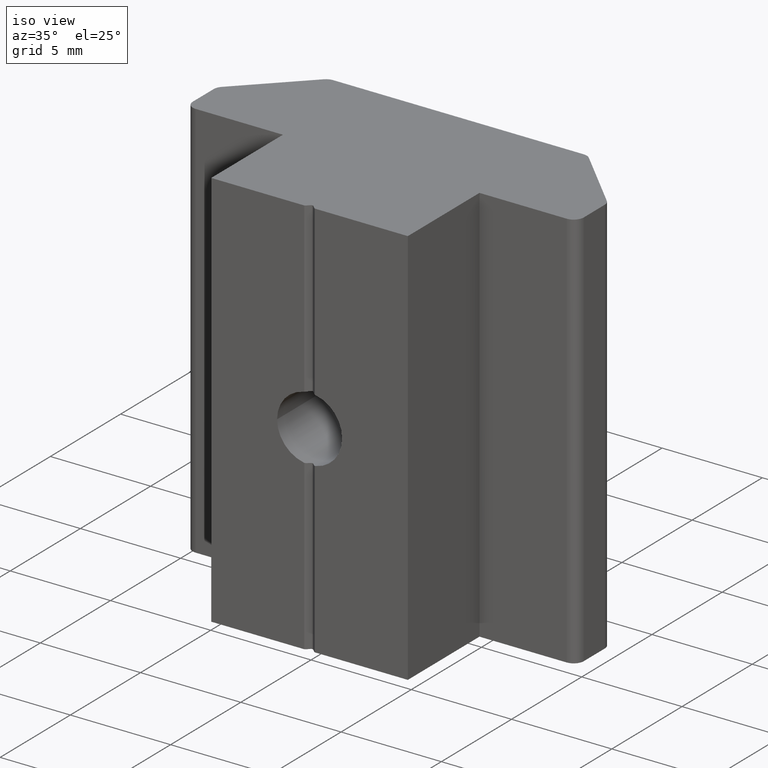
[diagram: clean part render]
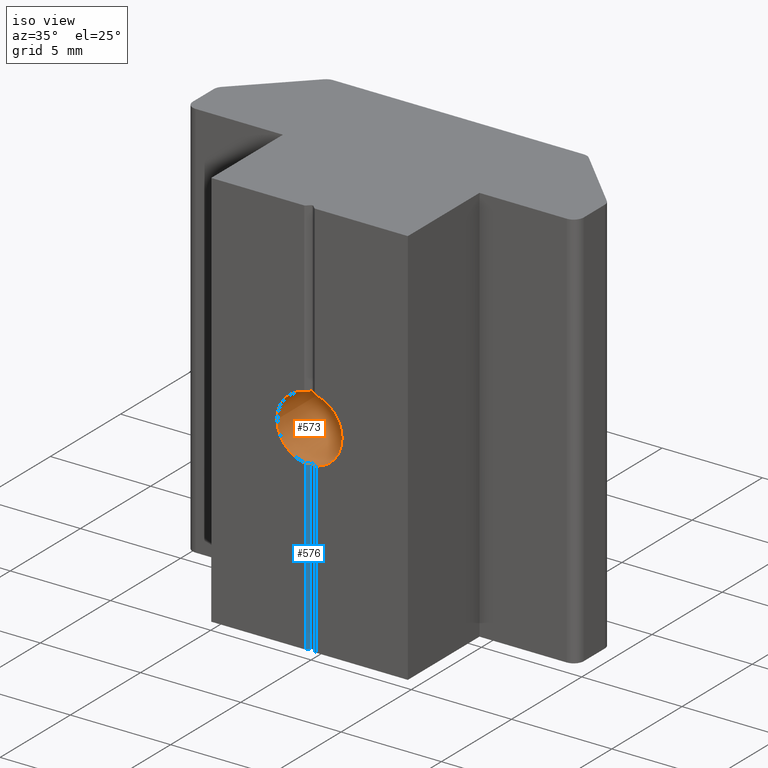
[diagram: same view with the hole feature highlighted: cylindrical wall and planar end face, labeled with their STEP entity ids]
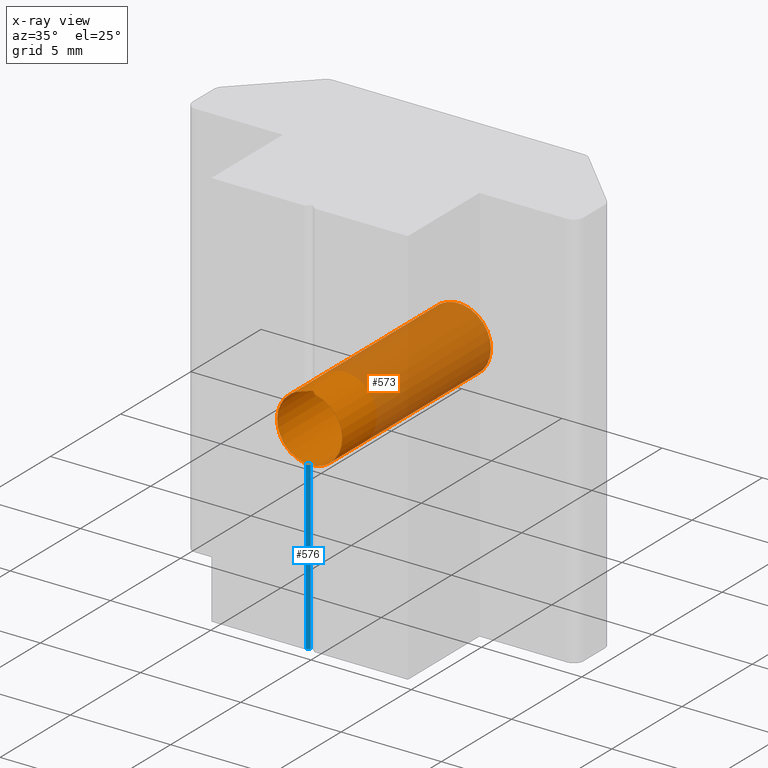
[diagram: x-ray of the same camera — body ghosted, the hole faces saturated]
A machine part, iso view. The highlighted faces form one hole feature of diameter 3.242 mm: the cylindrical wall (entity #573, orange) and its adjacent planar end face (entity #576, blue) — they share a circular edge in the B-rep.
The next image is the same camera in x-ray (body ghosted, the hole faces saturated) — the bore reads through the body.
Wall:
#33=FACE_OUTER_BOUND('',#63,.T.);
#63=EDGE_LOOP('',(#384,#385,#386,#387,#388,#389,#390,#391,#392,#393,#394,
#395,#396,#397,#398,#399,#400));
#94=ELLIPSE('',#627,2.2924401846068,1.621);
#95=ELLIPSE('',#628,2.29244018460681,1.621);
#96=ELLIPSE('',#630,2.29244018460681,1.621);
#97=ELLIPSE('',#631,2.2924401846068,1.621);
#98=B_SPLINE_CURVE_WITH_KNOTS('',3,(#862,#863,#864,#865,#866,#867),
 .UNSPECIFIED.,.F.,.F.,(4,2,4),(0.00754612546255361,0.0113398833295505,
0.015153248325312),.UNSPECIFIED.);
#99=B_SPLINE_CURVE_WITH_KNOTS('',3,(#871,#872,#873,#874,#875,#876,#877,
#878,#879,#880),.UNSPECIFIED.,.F.,.F.,(4,2,2,2,4),(0.0075357883995168,0.0113036807525469,
0.0150715731055769,0.018839465458607,0.0226073578116371),.UNSPECIFIED.);
#100=B_SPLINE_CURVE_WITH_KNOTS('',3,(#884,#885,#886,#887,#888,#889),
 .UNSPECIFIED.,.F.,.F.,(4,2,4),(0.0152264433665718,0.0190398083623332,0.0228335662293301),
 .UNSPECIFIED.);
#101=B_SPLINE_CURVE_WITH_KNOTS('',3,(#893,#894,#895,#896,#897,#898),
 .UNSPECIFIED.,.F.,.F.,(4,2,4),(0.0379258206086973,0.0417195784756941,0.0455329434714556),
 .UNSPECIFIED.);
#102=B_SPLINE_CURVE_WITH_KNOTS('',3,(#902,#903,#904,#905,#906,#907,#908,
#909,#910,#911),.UNSPECIFIED.,.F.,.F.,(4,2,2,2,4),(0.0376789346106707,0.0414468269637007,
0.0452147193167308,0.0489826116697609,0.0527505040227909),.UNSPECIFIED.);
#103=B_SPLINE_CURVE_WITH_KNOTS('',3,(#915,#916,#917,#918,#919,#920),
 .UNSPECIFIED.,.F.,.F.,(4,2,4),(0.0456061350584557,0.0494195000542172,0.0532132579212142),
 .UNSPECIFIED.);
#104=LINE('',#858,#159);
#159=VECTOR('',#688,1.621);
#214=CIRCLE('',#624,1.621);
#215=CIRCLE('',#625,1.621);
#216=CIRCLE('',#626,1.621);
#217=CIRCLE('',#629,1.621);
#218=CIRCLE('',#632,1.621);
#237=VERTEX_POINT('',#853);
#238=VERTEX_POINT('',#854);
#239=VERTEX_POINT('',#857);
#240=VERTEX_POINT('',#859);
#241=VERTEX_POINT('',#861);
#242=VERTEX_POINT('',#868);
#243=VERTEX_POINT('',#870);
#244=VERTEX_POINT('',#881);
#245=VERTEX_POINT('',#883);
#246=VERTEX_POINT('',#890);
#247=VERTEX_POINT('',#892);
#248=VERTEX_POINT('',#899);
#249=VERTEX_POINT('',#901);
#250=VERTEX_POINT('',#912);
#251=VERTEX_POINT('',#914);
#296=EDGE_CURVE('',#237,#238,#214,.T.);
#297=EDGE_CURVE('',#238,#237,#215,.T.);
#298=EDGE_CURVE('',#238,#239,#104,.T.);
#299=EDGE_CURVE('',#240,#239,#216,.T.);
#300=EDGE_CURVE('',#241,#240,#98,.T.);
#301=EDGE_CURVE('',#242,#241,#94,.T.);
#302=EDGE_CURVE('',#243,#242,#99,.T.);
#303=EDGE_CURVE('',#244,#243,#95,.T.);
#304=EDGE_CURVE('',#245,#244,#100,.T.);
#305=EDGE_CURVE('',#246,#245,#217,.T.);
#306=EDGE_CURVE('',#247,#246,#101,.T.);
#307=EDGE_CURVE('',#248,#247,#96,.T.);
#308=EDGE_CURVE('',#249,#248,#102,.T.);
#309=EDGE_CURVE('',#250,#249,#97,.T.);
#310=EDGE_CURVE('',#251,#250,#103,.T.);
#311=EDGE_CURVE('',#239,#251,#218,.T.);
#384=ORIENTED_EDGE('',*,*,#296,.F.);
#385=ORIENTED_EDGE('',*,*,#297,.F.);
#386=ORIENTED_EDGE('',*,*,#298,.T.);
#387=ORIENTED_EDGE('',*,*,#299,.F.);
#388=ORIENTED_EDGE('',*,*,#300,.F.);
#389=ORIENTED_EDGE('',*,*,#301,.F.);
#390=ORIENTED_EDGE('',*,*,#302,.F.);
#391=ORIENTED_EDGE('',*,*,#303,.F.);
#392=ORIENTED_EDGE('',*,*,#304,.F.);
#393=ORIENTED_EDGE('',*,*,#305,.F.);
#394=ORIENTED_EDGE('',*,*,#306,.F.);
#395=ORIENTED_EDGE('',*,*,#307,.F.);
#396=ORIENTED_EDGE('',*,*,#308,.F.);
#397=ORIENTED_EDGE('',*,*,#309,.F.);
#398=ORIENTED_EDGE('',*,*,#310,.F.);
#399=ORIENTED_EDGE('',*,*,#311,.F.);
#400=ORIENTED_EDGE('',*,*,#298,.F.);
#560=CYLINDRICAL_SURFACE('',#623,1.621);
#573=ADVANCED_FACE('',(#33),#560,.F.);
#623=AXIS2_PLACEMENT_3D('',#852,#682,#683);
#624=AXIS2_PLACEMENT_3D('',#855,#684,#685);
#625=AXIS2_PLACEMENT_3D('',#856,#686,#687);
#626=AXIS2_PLACEMENT_3D('',#860,#689,#690);
#627=AXIS2_PLACEMENT_3D('',#869,#691,#692);
#628=AXIS2_PLACEMENT_3D('',#882,#693,#694);
#629=AXIS2_PLACEMENT_3D('',#891,#695,#696);
#630=AXIS2_PLACEMENT_3D('',#900,#697,#698);
#631=AXIS2_PLACEMENT_3D('',#913,#699,#700);
#632=AXIS2_PLACEMENT_3D('',#921,#701,#702);
#682=DIRECTION('center_axis',(0.,1.,0.));
#683=DIRECTION('ref_axis',(1.,0.,0.));
#684=DIRECTION('center_axis',(0.,-1.,0.));
#685=DIRECTION('ref_axis',(1.,0.,0.));
#686=DIRECTION('center_axis',(0.,-1.,0.));
#687=DIRECTION('ref_axis',(1.,0.,0.));
#688=DIRECTION('',(0.,-1.,0.));
#689=DIRECTION('center_axis',(0.,1.,0.));
#690=DIRECTION('ref_axis',(1.,0.,0.));
#691=DIRECTION('center_axis',(-0.707106781186551,0.707106781186544,0.));
#692=DIRECTION('ref_axis',(0.707106781186544,0.707106781186551,0.));
#693=DIRECTION('center_axis',(0.707106781186553,0.707106781186542,0.));
#694=DIRECTION('ref_axis',(0.707106781186542,-0.707106781186553,0.));
#695=DIRECTION('center_axis',(0.,1.,0.));
#696=DIRECTION('ref_axis',(1.,0.,0.));
#697=DIRECTION('center_axis',(0.707106781186553,0.707106781186542,0.));
#698=DIRECTION('ref_axis',(0.707106781186542,-0.707106781186553,0.));
#699=DIRECTION('center_axis',(-0.707106781186551,0.707106781186544,0.));
#700=DIRECTION('ref_axis',(0.707106781186544,0.707106781186551,0.));
#701=DIRECTION('center_axis',(0.,1.,0.));
#702=DIRECTION('ref_axis',(1.,0.,0.));
#852=CARTESIAN_POINT('Origin',(0.,0.2,0.));
#853=CARTESIAN_POINT('',(1.621,5.5,0.));
#854=CARTESIAN_POINT('',(-1.621,5.5,1.98515246141786E-16));
#855=CARTESIAN_POINT('Origin',(0.,5.5,0.));
#856=CARTESIAN_POINT('Origin',(0.,5.5,0.));
#857=CARTESIAN_POINT('',(-1.621,-5.1,1.98515246141786E-16));
#858=CARTESIAN_POINT('',(-1.621,0.2,1.98515246141786E-16));
#859=CARTESIAN_POINT('',(-0.282842712474618,-5.1,-1.59613313981009));
#860=CARTESIAN_POINT('Origin',(0.,-5.1,0.));
#861=CARTESIAN_POINT('',(-0.212132034355963,-5.07071067811865,-1.60705973753311));
#862=CARTESIAN_POINT('Ctrl Pts',(-0.212132034355963,-5.07071067811865,-1.60705973753311));
#863=CARTESIAN_POINT('Ctrl Pts',(-0.221041313543518,-5.07961995730621,-1.60588371185432));
#864=CARTESIAN_POINT('Ctrl Pts',(-0.232295122310146,-5.08730170931236,-1.60431865433565));
#865=CARTESIAN_POINT('Ctrl Pts',(-0.256931762792777,-5.09750656666743,-1.60055593224302));
#866=CARTESIAN_POINT('Ctrl Pts',(-0.270326491532963,-5.1,-1.59835107626712));
#867=CARTESIAN_POINT('Ctrl Pts',(-0.282842712474618,-5.1,-1.59613313981009));
#868=CARTESIAN_POINT('',(-0.0707106781186547,-4.92928932188135,-1.61945700776526));
#869=CARTESIAN_POINT('Origin',(0.,-4.85857864376269,0.));
#870=CARTESIAN_POINT('',(0.0707106781186551,-4.92928932188135,-1.61945700776526));
#871=CARTESIAN_POINT('Ctrl Pts',(0.0707106781186547,-4.92928932188135,-1.61945700776526));
#872=CARTESIAN_POINT('Ctrl Pts',(0.0618339005045977,-4.92041254426729,-1.61984459629746));
#873=CARTESIAN_POINT('Ctrl Pts',(0.0505913222794311,-4.91271699255373,-1.62025836879581));
#874=CARTESIAN_POINT('Ctrl Pts',(0.025954215527772,-4.90251076753078,-1.62083787725979));
#875=CARTESIAN_POINT('Ctrl Pts',(0.0125596411767669,-4.9,-1.621));
#876=CARTESIAN_POINT('Ctrl Pts',(-0.0125596411767669,-4.9,-1.621));
#877=CARTESIAN_POINT('Ctrl Pts',(-0.025954215527772,-4.90251076753078,-1.62083787725979));
#878=CARTESIAN_POINT('Ctrl Pts',(-0.0505913222794311,-4.91271699255373,
-1.62025836879581));
#879=CARTESIAN_POINT('Ctrl Pts',(-0.0618339005045977,-4.92041254426729,
-1.61984459629746));
#880=CARTESIAN_POINT('Ctrl Pts',(-0.0707106781186547,-4.92928932188135,
-1.61945700776526));
#881=CARTESIAN_POINT('',(0.212132034355963,-5.07071067811865,-1.60705973753311));
#882=CARTESIAN_POINT('Origin',(0.,-4.85857864376269,0.));
#883=CARTESIAN_POINT('',(0.282842712474618,-5.1,-1.59613313981009));
#884=CARTESIAN_POINT('Ctrl Pts',(0.282842712474618,-5.1,-1.59613313981009));
#885=CARTESIAN_POINT('Ctrl Pts',(0.270326491532963,-5.1,-1.59835107626712));
#886=CARTESIAN_POINT('Ctrl Pts',(0.256931762792777,-5.09750656666743,-1.60055593224302));
#887=CARTESIAN_POINT('Ctrl Pts',(0.232295122310146,-5.08730170931236,-1.60431865433565));
#888=CARTESIAN_POINT('Ctrl Pts',(0.221041313543519,-5.07961995730621,-1.60588371185432));
#889=CARTESIAN_POINT('Ctrl Pts',(0.212132034355963,-5.07071067811865,-1.60705973753311));
#890=CARTESIAN_POINT('',(0.282842712474618,-5.1,1.59613313981009));
#891=CARTESIAN_POINT('Origin',(0.,-5.1,0.));
#892=CARTESIAN_POINT('',(0.212132034355963,-5.07071067811865,1.60705973753311));
#893=CARTESIAN_POINT('Ctrl Pts',(0.212132034355963,-5.07071067811865,1.60705973753311));
#894=CARTESIAN_POINT('Ctrl Pts',(0.22104131354352,-5.07961995730621,1.60588371185432));
#895=CARTESIAN_POINT('Ctrl Pts',(0.232295122310146,-5.08730170931236,1.60431865433565));
#896=CARTESIAN_POINT('Ctrl Pts',(0.256931762792777,-5.09750656666743,1.60055593224302));
#897=CARTESIAN_POINT('Ctrl Pts',(0.270326491532963,-5.1,1.59835107626712));
#898=CARTESIAN_POINT('Ctrl Pts',(0.282842712474618,-5.1,1.59613313981009));
#899=CARTESIAN_POINT('',(0.0707106781186551,-4.92928932188135,1.61945700776526));
#900=CARTESIAN_POINT('Origin',(0.,-4.85857864376269,0.));
#901=CARTESIAN_POINT('',(-0.0707106781186547,-4.92928932188135,1.61945700776526));
#902=CARTESIAN_POINT('Ctrl Pts',(-0.0707106781186547,-4.92928932188135,
1.61945700776526));
#903=CARTESIAN_POINT('Ctrl Pts',(-0.0618339005045977,-4.92041254426729,
1.61984459629746));
#904=CARTESIAN_POINT('Ctrl Pts',(-0.0505913222794311,-4.91271699255373,
1.62025836879581));
#905=CARTESIAN_POINT('Ctrl Pts',(-0.025954215527772,-4.90251076753078,1.62083787725979));
#906=CARTESIAN_POINT('Ctrl Pts',(-0.0125596411767669,-4.9,1.621));
#907=CARTESIAN_POINT('Ctrl Pts',(0.0125596411767669,-4.9,1.621));
#908=CARTESIAN_POINT('Ctrl Pts',(0.025954215527772,-4.90251076753078,1.62083787725979));
#909=CARTESIAN_POINT('Ctrl Pts',(0.0505913222794311,-4.91271699255373,1.62025836879581));
#910=CARTESIAN_POINT('Ctrl Pts',(0.0618339005045977,-4.92041254426729,1.61984459629746));
#911=CARTESIAN_POINT('Ctrl Pts',(0.0707106781186547,-4.92928932188135,1.61945700776526));
#912=CARTESIAN_POINT('',(-0.212132034355963,-5.07071067811865,1.60705973753311));
#913=CARTESIAN_POINT('Origin',(0.,-4.85857864376269,0.));
#914=CARTESIAN_POINT('',(-0.282842712474618,-5.1,1.59613313981009));
#915=CARTESIAN_POINT('Ctrl Pts',(-0.282842712474618,-5.1,1.59613313981009));
#916=CARTESIAN_POINT('Ctrl Pts',(-0.270326491532963,-5.1,1.59835107626712));
#917=CARTESIAN_POINT('Ctrl Pts',(-0.256931762792777,-5.09750656666743,1.60055593224302));
#918=CARTESIAN_POINT('Ctrl Pts',(-0.232295122310145,-5.08730170931236,1.60431865433565));
#919=CARTESIAN_POINT('Ctrl Pts',(-0.221041313543518,-5.07961995730621,1.60588371185432));
#920=CARTESIAN_POINT('Ctrl Pts',(-0.212132034355963,-5.07071067811865,1.60705973753311));
#921=CARTESIAN_POINT('Origin',(0.,-5.1,0.));
End face:
#17=PLANE('',#636);
#36=FACE_OUTER_BOUND('',#66,.T.);
#66=EDGE_LOOP('',(#411,#412,#413,#414));
#94=ELLIPSE('',#627,2.2924401846068,1.621);
#106=LINE('',#927,#161);
#112=LINE('',#940,#167);
#113=LINE('',#941,#168);
#161=VECTOR('',#708,10.);
#167=VECTOR('',#718,10.);
#168=VECTOR('',#719,10.);
#241=VERTEX_POINT('',#861);
#242=VERTEX_POINT('',#868);
#253=VERTEX_POINT('',#925);
#258=VERTEX_POINT('',#939);
#301=EDGE_CURVE('',#242,#241,#94,.T.);
#314=EDGE_CURVE('',#253,#241,#106,.T.);
#320=EDGE_CURVE('',#258,#253,#112,.T.);
#321=EDGE_CURVE('',#258,#242,#113,.T.);
#411=ORIENTED_EDGE('',*,*,#301,.T.);
#412=ORIENTED_EDGE('',*,*,#314,.F.);
#413=ORIENTED_EDGE('',*,*,#320,.F.);
#414=ORIENTED_EDGE('',*,*,#321,.T.);
#576=ADVANCED_FACE('',(#36),#17,.F.);
#627=AXIS2_PLACEMENT_3D('',#869,#691,#692);
#636=AXIS2_PLACEMENT_3D('',#938,#716,#717);
#691=DIRECTION('center_axis',(-0.707106781186551,0.707106781186544,0.));
#692=DIRECTION('ref_axis',(0.707106781186544,0.707106781186551,0.));
#708=DIRECTION('',(0.,0.,1.));
#716=DIRECTION('center_axis',(-0.707106781186551,0.707106781186544,0.));
#717=DIRECTION('ref_axis',(-0.707106781186544,-0.707106781186551,0.));
#718=DIRECTION('',(-0.707106781186544,-0.707106781186551,0.));
#719=DIRECTION('',(0.,0.,1.));
#861=CARTESIAN_POINT('',(-0.212132034355963,-5.07071067811865,-1.60705973753311));
#868=CARTESIAN_POINT('',(-0.0707106781186547,-4.92928932188135,-1.61945700776526));
#869=CARTESIAN_POINT('Origin',(0.,-4.85857864376269,0.));
#925=CARTESIAN_POINT('',(-0.212132034355963,-5.07071067811865,-10.));
#927=CARTESIAN_POINT('',(-0.212132034355963,-5.07071067811865,0.));
#938=CARTESIAN_POINT('Origin',(-0.0707106781186547,-4.92928932188135,0.));
#939=CARTESIAN_POINT('',(-0.0707106781186547,-4.92928932188135,-10.));
#940=CARTESIAN_POINT('',(1.33335892610176,-3.52521971766091,-10.));
#941=CARTESIAN_POINT('',(-0.0707106781186547,-4.92928932188135,0.));